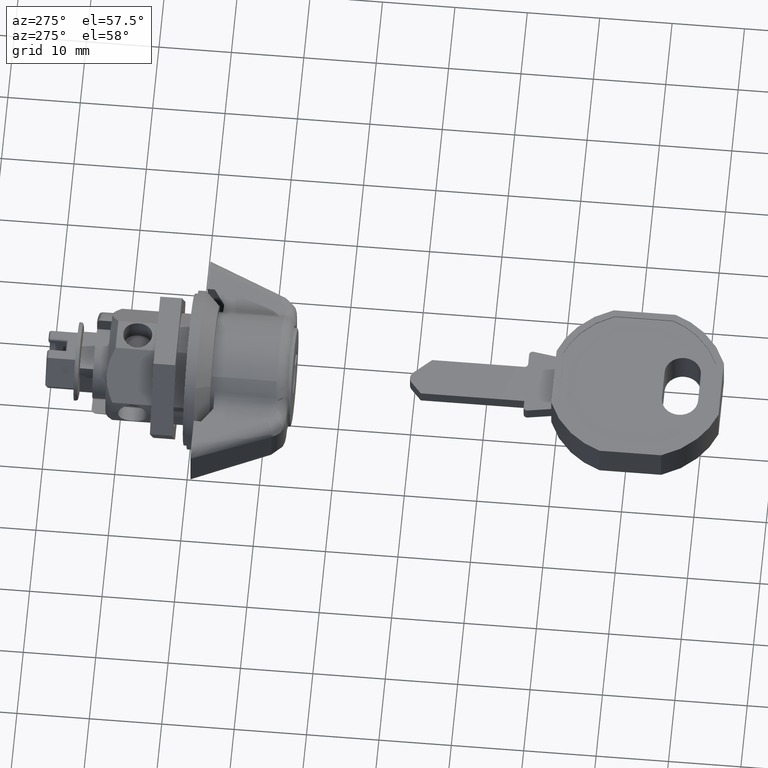
[diagram: clean part render]
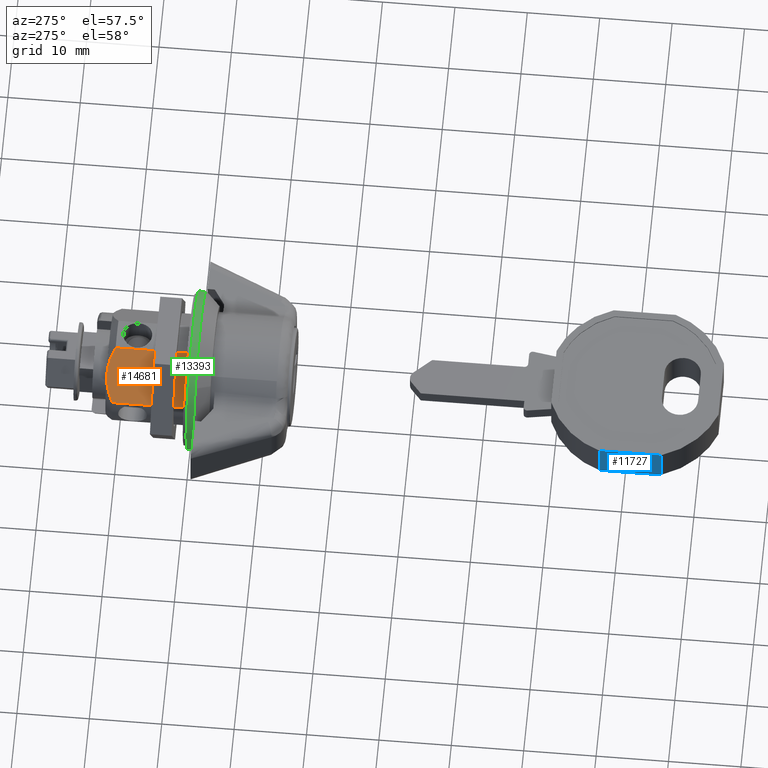
[diagram: same view with three faces highlighted in distinct colors, each labeled with its STEP entity id]
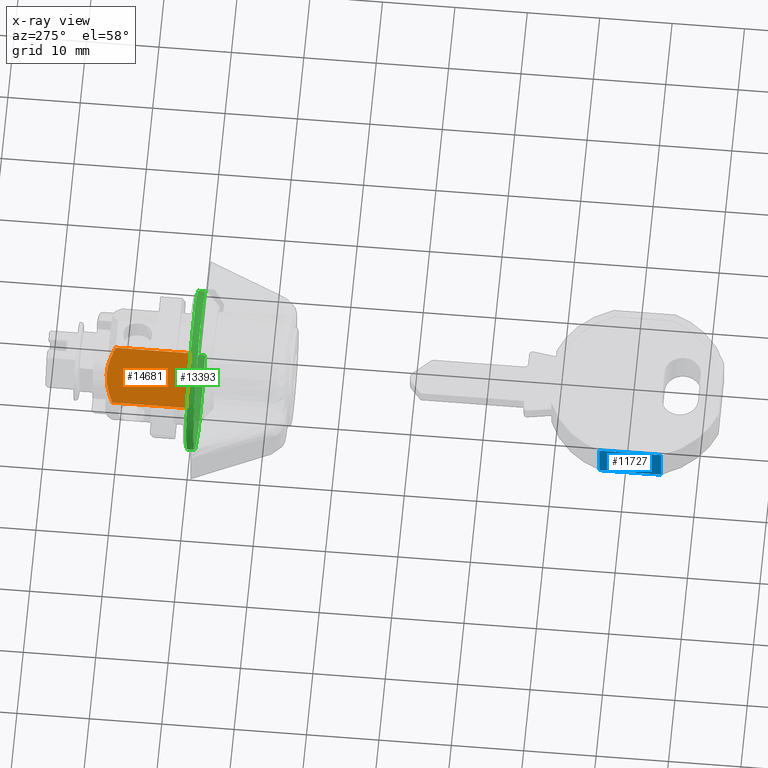
[diagram: x-ray of the same camera — body ghosted, the three highlighted faces saturated]
A machine part, auxiliary view with three faces highlighted in distinct colors.
The next image is the same camera in x-ray (body ghosted, the three faces saturated) — at least one of them is partly hidden behind the body in this view.
Their STEP definitions:

[orange] entity #14681 — the highlighted face is a freeform B-spline surface patch.
#14183=CARTESIAN_POINT('',(10.500000546220701,2.211134680780330,7.688360255831570));
#14184=VERTEX_POINT('',#14183);
#14185=CARTESIAN_POINT('',(11.500000546220701,4.949747703406260,4.949747703406320));
#14186=VERTEX_POINT('',#14185);
#14187=CARTESIAN_POINT('',(10.500000546220701,2.211134680780330,7.688360255831570));
#14188=CARTESIAN_POINT('',(10.647434205165750,2.426475322752959,7.473019613858943));
#14189=CARTESIAN_POINT('',(10.783239749082989,2.644195419303963,7.255299987508595));
#14190=CARTESIAN_POINT('',(11.025567573936700,3.085626767632067,6.813868639180491));
#14191=CARTESIAN_POINT('',(11.132082438281151,3.309339772012540,6.590155634800021));
#14192=CARTESIAN_POINT('',(11.308666914451560,3.764222815251371,6.135272591561195));
#14193=CARTESIAN_POINT('',(11.378712038647510,3.995397864504461,5.904097542308108));
#14194=CARTESIAN_POINT('',(11.450554180674700,4.348958690886744,5.550536715925827));
#14195=CARTESIAN_POINT('',(11.468960888006560,4.467945972499679,5.431549434312892));
#14196=CARTESIAN_POINT('',(11.493734370995339,4.708384016684168,5.191111390128409));
#14197=CARTESIAN_POINT('',(11.500000214283849,4.829065599308533,5.070429807504047));
#14198=CARTESIAN_POINT('',(11.500000546220701,4.949747703406260,4.949747703406320));
#14199=B_SPLINE_CURVE_WITH_KNOTS('',3,(#14187,#14188,#14189,#14190,#14191,#14192,#14193,#14194,#14195,#14196,#14197,#14198),.UNSPECIFIED.,.F.,.U.,(4,2,2,2,2,4),(0.0,0.250000000000000,0.500000000000000,0.750000000000000,0.875000000000000,1.0),.UNSPECIFIED.);
#14200=EDGE_CURVE('',#14184,#14186,#14199,.T.);
#14398=CARTESIAN_POINT('',(10.500000546220701,7.688360621009000,2.211134785803610));
#14399=VERTEX_POINT('',#14398);
#14409=CARTESIAN_POINT('',(11.500000546220701,4.949747703406260,4.949747703406320));
#14410=CARTESIAN_POINT('',(11.500000546220701,5.189489980721086,4.710004955890588));
#14411=CARTESIAN_POINT('',(11.475277226182801,5.426195538069313,4.473299868743269));
#14412=CARTESIAN_POINT('',(11.381261048129719,5.894130940473322,4.005364466339266));
#14413=CARTESIAN_POINT('',(11.312011154155471,6.125366298640853,3.774129108171735));
#14414=CARTESIAN_POINT('',(11.179469161853460,6.468697657167436,3.430797749645156));
#14415=CARTESIAN_POINT('',(11.130517192769490,6.582555301976869,3.316940104835724));
#14416=CARTESIAN_POINT('',(11.023886680101111,6.809198556520022,3.090296850292571));
#14417=CARTESIAN_POINT('',(10.966419872801270,6.921528789217041,2.977966617595556));
#14418=CARTESIAN_POINT('',(10.783434322437181,7.255113444617999,2.644381962194602));
#14419=CARTESIAN_POINT('',(10.647212501088580,7.473343232167331,2.426152174645277));
#14420=CARTESIAN_POINT('',(10.500000546220701,7.688360621009000,2.211134785803610));
#14421=B_SPLINE_CURVE_WITH_KNOTS('',3,(#14409,#14410,#14411,#14412,#14413,#14414,#14415,#14416,#14417,#14418,#14419,#14420),.UNSPECIFIED.,.F.,.U.,(4,2,2,2,2,4),(0.0,0.250000000000000,0.500000000000000,0.625000000000000,0.750000000000000,1.0),.UNSPECIFIED.);
#14422=EDGE_CURVE('',#14186,#14399,#14421,.T.);
#14618=CARTESIAN_POINT('',(0.500000023748948,7.688360621009000,2.211134785803610));
#14619=VERTEX_POINT('',#14618);
#14620=CARTESIAN_POINT('',(10.500000546220701,7.688360621009000,2.211134785803610));
#14621=CARTESIAN_POINT('',(0.500000023748948,7.688360621009000,2.211134785803610));
#14622=QUASI_UNIFORM_CURVE('',1,(#14620,#14621),.UNSPECIFIED.,.F.,.U.);
#14623=EDGE_CURVE('',#14399,#14619,#14622,.T.);
#14645=CARTESIAN_POINT('',(-0.574425004994490,7.961948137196782,1.937547269615823));
#14646=CARTESIAN_POINT('',(-0.574425004994490,1.937547350722654,7.961948056089893));
#14647=CARTESIAN_POINT('',(12.074425859669240,7.961948137196782,1.937547269615823));
#14648=CARTESIAN_POINT('',(12.074425859669240,1.937547350722654,7.961948056089893));
#14649=B_SPLINE_SURFACE_WITH_KNOTS('',1,1,((#14645,#14647),(#14646,#14648)),.UNSPECIFIED.,.F.,.F.,.U.,(2,2),(2,2),(0.0,8.519789297402811),(0.0,12.648850864663730),.UNSPECIFIED.);
#14650=ORIENTED_EDGE('',*,*,#14200,.T.);
#14651=ORIENTED_EDGE('',*,*,#14422,.T.);
#14652=ORIENTED_EDGE('',*,*,#14623,.T.);
#14653=CARTESIAN_POINT('',(0.0,7.688360621009000,2.211134785803610));
#14654=VERTEX_POINT('',#14653);
#14655=CARTESIAN_POINT('',(0.500000023748948,7.688360621009000,2.211134785803610));
#14656=CARTESIAN_POINT('',(0.0,7.688360621009000,2.211134785803610));
#14657=QUASI_UNIFORM_CURVE('',1,(#14655,#14656),.UNSPECIFIED.,.F.,.U.);
#14658=EDGE_CURVE('',#14619,#14654,#14657,.T.);
#14659=ORIENTED_EDGE('',*,*,#14658,.T.);
#14660=CARTESIAN_POINT('',(0.0,2.211134680780330,7.688360255831570));
#14661=VERTEX_POINT('',#14660);
#14662=CARTESIAN_POINT('',(0.0,2.211134680780330,7.688360255831570));
#14663=CARTESIAN_POINT('',(0.0,7.688360621009000,2.211134785803610));
#14664=QUASI_UNIFORM_CURVE('',1,(#14662,#14663),.UNSPECIFIED.,.F.,.U.);
#14665=EDGE_CURVE('',#14661,#14654,#14664,.T.);
#14666=ORIENTED_EDGE('',*,*,#14665,.F.);
#14667=CARTESIAN_POINT('',(0.500000023748948,2.211134680780330,7.688360255831570));
#14668=VERTEX_POINT('',#14667);
#14669=CARTESIAN_POINT('',(0.500000023748948,2.211134680780330,7.688360255831570));
#14670=CARTESIAN_POINT('',(0.0,2.211134680780330,7.688360255831570));
#14671=QUASI_UNIFORM_CURVE('',1,(#14669,#14670),.UNSPECIFIED.,.F.,.U.);
#14672=EDGE_CURVE('',#14668,#14661,#14671,.T.);
#14673=ORIENTED_EDGE('',*,*,#14672,.F.);
#14674=CARTESIAN_POINT('',(10.500000546220701,2.211134680780330,7.688360255831570));
#14675=CARTESIAN_POINT('',(0.500000023748948,2.211134680780330,7.688360255831570));
#14676=QUASI_UNIFORM_CURVE('',1,(#14674,#14675),.UNSPECIFIED.,.F.,.U.);
#14677=EDGE_CURVE('',#14184,#14668,#14676,.T.);
#14678=ORIENTED_EDGE('',*,*,#14677,.F.);
#14679=EDGE_LOOP('',(#14650,#14651,#14652,#14659,#14666,#14673,#14678));
#14680=FACE_OUTER_BOUND('',#14679,.T.);
#14681=ADVANCED_FACE('',(#14680),#14649,.T.);

[blue] entity #11727 — the highlighted face is a freeform B-spline surface patch.
#11343=CARTESIAN_POINT('',(-65.476462251274995,9.849999973391050,-2.499999999999945));
#11344=VERTEX_POINT('',#11343);
#11345=CARTESIAN_POINT('',(-65.376788071871616,9.850000026300819,-2.499999999999945));
#11346=VERTEX_POINT('',#11345);
#11347=CARTESIAN_POINT('',(-65.476462251274995,9.849999973391050,-2.499999999999945));
#11348=CARTESIAN_POINT('',(-65.376788071871616,9.850000026300819,-2.499999999999945));
#11349=QUASI_UNIFORM_CURVE('',1,(#11347,#11348),.UNSPECIFIED.,.F.,.U.);
#11350=EDGE_CURVE('',#11344,#11346,#11349,.T.);
#11352=CARTESIAN_POINT('',(-56.935490918699408,9.850000079210469,-2.499999999999945));
#11353=VERTEX_POINT('',#11352);
#11354=CARTESIAN_POINT('',(-65.376788071871616,9.850000026300819,-2.499999999999945));
#11355=CARTESIAN_POINT('',(-56.935490918699408,9.850000079210469,-2.499999999999945));
#11356=QUASI_UNIFORM_CURVE('',1,(#11354,#11355),.UNSPECIFIED.,.F.,.U.);
#11357=EDGE_CURVE('',#11346,#11353,#11356,.T.);
#11449=CARTESIAN_POINT('',(-65.476462251274995,9.849999973391050,2.499999999999945));
#11450=VERTEX_POINT('',#11449);
#11451=CARTESIAN_POINT('',(-65.376788071871616,9.850000026300819,2.499999999999945));
#11452=VERTEX_POINT('',#11451);
#11453=CARTESIAN_POINT('',(-65.476462251274995,9.849999973391050,2.499999999999945));
#11454=CARTESIAN_POINT('',(-65.376788071871616,9.850000026300819,2.499999999999945));
#11455=QUASI_UNIFORM_CURVE('',1,(#11453,#11454),.UNSPECIFIED.,.F.,.U.);
#11456=EDGE_CURVE('',#11450,#11452,#11455,.T.);
#11519=CARTESIAN_POINT('',(-56.935490918699408,9.850000079210469,2.499999999999945));
#11520=VERTEX_POINT('',#11519);
#11532=CARTESIAN_POINT('',(-65.376788071871616,9.850000026300819,2.499999999999945));
#11533=CARTESIAN_POINT('',(-56.935490918699408,9.850000079210469,2.499999999999945));
#11534=QUASI_UNIFORM_CURVE('',1,(#11532,#11533),.UNSPECIFIED.,.F.,.U.);
#11535=EDGE_CURVE('',#11452,#11520,#11534,.T.);
#11571=CARTESIAN_POINT('',(-65.476462251274995,9.849999973391050,2.499999999999945));
#11572=CARTESIAN_POINT('',(-65.476462251274995,9.849999973391050,-2.499999999999945));
#11573=QUASI_UNIFORM_CURVE('',1,(#11571,#11572),.UNSPECIFIED.,.F.,.U.);
#11574=EDGE_CURVE('',#11450,#11344,#11573,.T.);
#11698=CARTESIAN_POINT('',(-56.935490918699408,9.850000079210469,2.499999999999945));
#11699=CARTESIAN_POINT('',(-56.935490918699408,9.850000079210469,-2.499999999999945));
#11700=QUASI_UNIFORM_CURVE('',1,(#11698,#11699),.UNSPECIFIED.,.F.,.U.);
#11701=EDGE_CURVE('',#11520,#11353,#11700,.T.);
#11714=CARTESIAN_POINT('',(-56.508868023675987,9.850000081884524,-2.749749990308970));
#11715=CARTESIAN_POINT('',(-65.903084688124991,9.850000023002016,-2.749749990308970));
#11716=CARTESIAN_POINT('',(-56.508868023675987,9.850000081884524,2.749750124419420));
#11717=CARTESIAN_POINT('',(-65.903084688124991,9.850000023002018,2.749750124419420));
#11718=B_SPLINE_SURFACE_WITH_KNOTS('',1,1,((#11714,#11716),(#11715,#11717)),.UNSPECIFIED.,.F.,.F.,.U.,(2,2),(2,2),(0.0,9.394216664449004),(0.0,5.499500114728390),.UNSPECIFIED.);
#11719=ORIENTED_EDGE('',*,*,#11357,.F.);
#11720=ORIENTED_EDGE('',*,*,#11350,.F.);
#11721=ORIENTED_EDGE('',*,*,#11574,.F.);
#11722=ORIENTED_EDGE('',*,*,#11456,.T.);
#11723=ORIENTED_EDGE('',*,*,#11535,.T.);
#11724=ORIENTED_EDGE('',*,*,#11701,.T.);
#11725=EDGE_LOOP('',(#11719,#11720,#11721,#11722,#11723,#11724));
#11726=FACE_OUTER_BOUND('',#11725,.T.);
#11727=ADVANCED_FACE('',(#11726),#11718,.T.);

[green] entity #13393 — the highlighted face is a freeform B-spline surface patch.
#13216=CARTESIAN_POINT('',(0.025000001187435,-8.399112471281631,7.103162759584477));
#13217=CARTESIAN_POINT('',(0.025000001187435,-8.195823004827449,7.343541750009779));
#13218=CARTESIAN_POINT('',(0.025000001187435,-7.979118460123033,7.571900692277353));
#13219=CARTESIAN_POINT('',(0.025000001187435,-0.407217767845680,15.551019152400384));
#13220=CARTESIAN_POINT('',(0.025000001187435,7.571900692277353,7.979118460123033));
#13221=CARTESIAN_POINT('',(0.025000001187435,15.551019152400384,0.407217767845680));
#13222=CARTESIAN_POINT('',(0.025000001187435,7.979118460123033,-7.571900692277353));
#13223=CARTESIAN_POINT('',(0.025000001187435,0.407217767845680,-15.551019152400384));
#13224=CARTESIAN_POINT('',(0.025000001187435,-7.571900692277353,-7.979118460123033));
#13225=CARTESIAN_POINT('',(-1.025625048714515,-8.399112471281631,7.103162759584477));
#13226=CARTESIAN_POINT('',(-1.025625048714515,-8.195823004827449,7.343541750009779));
#13227=CARTESIAN_POINT('',(-1.025625048714515,-7.979118460123033,7.571900692277353));
#13228=CARTESIAN_POINT('',(-1.025625048714515,-0.407217767845680,15.551019152400384));
#13229=CARTESIAN_POINT('',(-1.025625048714515,7.571900692277353,7.979118460123033));
#13230=CARTESIAN_POINT('',(-1.025625048714515,15.551019152400384,0.407217767845680));
#13231=CARTESIAN_POINT('',(-1.025625048714515,7.979118460123033,-7.571900692277353));
#13232=CARTESIAN_POINT('',(-1.025625048714515,0.407217767845680,-15.551019152400384));
#13233=CARTESIAN_POINT('',(-1.025625048714515,-7.571900692277353,-7.979118460123033));
#13241=(BOUNDED_SURFACE()B_SPLINE_SURFACE(2,1,((#13216,#13225),(#13217,#13226),(#13218,#13227),(#13219,#13228),(#13220,#13229),(#13221,#13230),(#13222,#13231),(#13223,#13232),(#13224,#13233)),.UNSPECIFIED.,.F.,.F.,.U.)B_SPLINE_SURFACE_WITH_KNOTS((3,2,2,2,3),(2,2),(0.0,0.729015904403053,18.954413514479349,37.179811124555648,55.405208734631941),(0.0,1.0),.UNSPECIFIED.)GEOMETRIC_REPRESENTATION_ITEM()RATIONAL_B_SPLINE_SURFACE(((0.977505800795127,0.977505800795127),(0.988284271247462,0.988284271247462),(1.0,1.0),(0.707106781186548,0.707106781186548),(1.0,1.0),(0.707106781186548,0.707106781186548),(1.0,1.0),(0.707106781186548,0.707106781186548),(1.0,1.0)))REPRESENTATION_ITEM('')SURFACE());
#13242=CARTESIAN_POINT('',(-1.000000047500504,-8.399112724170363,7.103162953249269));
#13243=VERTEX_POINT('',#13242);
#13244=CARTESIAN_POINT('',(-1.000000047497394,0.0,11.000000522472099));
#13245=VERTEX_POINT('',#13244);
#13246=CARTESIAN_POINT('',(-1.000000047500504,-8.399112724170363,7.103162953249269));
#13247=CARTESIAN_POINT('',(-1.000000047500290,-7.836780517741050,7.768428487203052));
#13248=CARTESIAN_POINT('',(-1.000000047499933,-6.827940859372434,8.707792650409576));
#13249=CARTESIAN_POINT('',(-1.000000047499302,-5.182895495354818,9.746849740411406));
#13250=CARTESIAN_POINT('',(-1.000000047498811,-3.813702817916049,10.354068452674360));
#13251=CARTESIAN_POINT('',(-1.000000047498151,-2.065604069849111,10.859961115099919));
#13252=CARTESIAN_POINT('',(-1.000000047497700,-0.821306320951637,11.000153533182001));
#13253=CARTESIAN_POINT('',(-1.000000047497394,0.0,11.000000522472099));
#13254=B_SPLINE_CURVE_WITH_KNOTS('',3,(#13246,#13247,#13248,#13249,#13250,#13251,#13252,#13253),.UNSPECIFIED.,.F.,.U.,(4,1,1,1,1,4),(0.000000019335522,2.613198568686461,4.106464725707791,5.823692557052628,7.092964548806465,9.556836803140508),.UNSPECIFIED.);
#13255=EDGE_CURVE('',#13243,#13245,#13254,.T.);
#13256=ORIENTED_EDGE('',*,*,#13255,.F.);
#13257=CARTESIAN_POINT('',(-2.129571E-017,-8.399112724035124,7.103162953409182));
#13258=VERTEX_POINT('',#13257);
#13259=CARTESIAN_POINT('',(-2.129571E-017,-8.399112724035124,7.103162953409182));
#13260=CARTESIAN_POINT('',(-1.000000047500504,-8.399112724170363,7.103162953249269));
#13261=QUASI_UNIFORM_CURVE('',1,(#13259,#13260),.UNSPECIFIED.,.F.,.U.);
#13262=EDGE_CURVE('',#13258,#13243,#13261,.T.);
#13263=ORIENTED_EDGE('',*,*,#13262,.F.);
#13264=CARTESIAN_POINT('',(0.0,0.0,11.000000522472099));
#13265=VERTEX_POINT('',#13264);
#13266=CARTESIAN_POINT('',(-2.129571E-017,-8.399112724035124,7.103162953409182));
#13267=CARTESIAN_POINT('',(-2.027712E-017,-7.997376174995998,7.578272311022584));
#13268=CARTESIAN_POINT('',(-1.812441E-017,-7.148340424486846,8.424740608768804));
#13269=CARTESIAN_POINT('',(-1.400657E-017,-5.524245880571021,9.586937558618706));
#13270=CARTESIAN_POINT('',(-9.515439E-018,-3.752926823999794,10.408769798045091));
#13271=CARTESIAN_POINT('',(-4.606373E-018,-1.816771556335833,10.898361877165410));
#13272=CARTESIAN_POINT('',(-1.577545E-018,-0.622190125677557,11.000046344488990));
#13273=CARTESIAN_POINT('',(0.0,0.0,11.000000522472099));
#13274=B_SPLINE_CURVE_WITH_KNOTS('',3,(#13266,#13267,#13268,#13269,#13270,#13271,#13272,#13273),.UNSPECIFIED.,.F.,.U.,(4,1,1,1,1,4),(0.000000019339298,1.866566363545727,3.583823103184919,5.973014831593944,7.690271635667425,9.556836802931043),.UNSPECIFIED.);
#13275=EDGE_CURVE('',#13258,#13265,#13274,.T.);
#13276=ORIENTED_EDGE('',*,*,#13275,.T.);
#13277=CARTESIAN_POINT('',(0.0,11.000000522472030,-0.000001290520835));
#13278=VERTEX_POINT('',#13277);
#13279=CARTESIAN_POINT('',(0.0,0.0,11.000000522472099));
#13280=CARTESIAN_POINT('',(0.0,0.629950403506099,11.000051329808301));
#13281=CARTESIAN_POINT('',(0.0,1.867346851904210,10.893425433313361));
#13282=CARTESIAN_POINT('',(0.0,3.527771187008677,10.461237215835620));
#13283=CARTESIAN_POINT('',(0.0,4.876436862380453,9.887965568415739));
#13284=CARTESIAN_POINT('',(0.0,6.030958969009077,9.229245057674079));
#13285=CARTESIAN_POINT('',(0.0,7.083629073108412,8.453534235354292));
#13286=CARTESIAN_POINT('',(0.0,8.161080903549490,7.427717649588383));
#13287=CARTESIAN_POINT('',(0.0,9.256693736318079,6.050268452941415));
#13288=CARTESIAN_POINT('',(0.0,10.275344825554511,4.158774906700564));
#13289=CARTESIAN_POINT('',(0.0,10.880548619254631,2.047363415629032));
#13290=CARTESIAN_POINT('',(0.0,11.000018991901671,0.607449459022155));
#13291=CARTESIAN_POINT('',(0.0,11.000000522472030,-0.000001290520835));
#13292=B_SPLINE_CURVE_WITH_KNOTS('',3,(#13279,#13280,#13281,#13282,#13283,#13284,#13285,#13286,#13287,#13288,#13289,#13290,#13291),.UNSPECIFIED.,.F.,.U.,(4,1,1,1,1,1,1,1,1,1,4),(0.000000058587034,1.889846334227892,3.712235306792307,5.129641365539980,6.277073309589154,7.694487935633848,9.044347331324223,10.731737380202791,12.959091199185901,15.456423214600539,17.278788248163501),.UNSPECIFIED.);
#13293=EDGE_CURVE('',#13265,#13278,#13292,.T.);
#13294=ORIENTED_EDGE('',*,*,#13293,.T.);
#13295=CARTESIAN_POINT('',(0.0,0.0,-11.000000522472099));
#13296=VERTEX_POINT('',#13295);
#13297=CARTESIAN_POINT('',(0.0,11.000000522472030,-0.000001290520835));
#13298=CARTESIAN_POINT('',(0.0,11.000330754068891,-0.967464397010292));
#13299=CARTESIAN_POINT('',(0.0,10.784840753823829,-2.587176859684579));
#13300=CARTESIAN_POINT('',(0.0,10.090140920240531,-4.473628232988311));
#13301=CARTESIAN_POINT('',(0.0,9.331756599622471,-5.881996932908457));
#13302=CARTESIAN_POINT('',(0.0,8.463079878313515,-7.091658514139692));
#13303=CARTESIAN_POINT('',(0.0,7.360213334169411,-8.221880412428249));
#13304=CARTESIAN_POINT('',(0.0,5.935012496148589,-9.327246688456590));
#13305=CARTESIAN_POINT('',(0.0,4.195972139924263,-10.249973164408029));
#13306=CARTESIAN_POINT('',(0.0,2.092322338818894,-10.866894721828061));
#13307=CARTESIAN_POINT('',(0.0,0.697451275839964,-11.000076126861231));
#13308=CARTESIAN_POINT('',(0.0,0.0,-11.000000522472099));
#13309=B_SPLINE_CURVE_WITH_KNOTS('',3,(#13297,#13298,#13299,#13300,#13301,#13302,#13303,#13304,#13305,#13306,#13307,#13308),.UNSPECIFIED.,.F.,.U.,(4,1,1,1,1,1,1,1,1,4),(0.000000058686865,2.902289534171304,4.859659334064521,6.007091413856051,7.694487287727592,9.314321628986548,10.731736475971880,13.094080764118070,15.186443739823440,17.278786793443501),.UNSPECIFIED.);
#13310=EDGE_CURVE('',#13278,#13296,#13309,.T.);
#13311=ORIENTED_EDGE('',*,*,#13310,.T.);
#13312=CARTESIAN_POINT('',(-2.081668E-017,-7.571900470495287,-7.979118226418326));
#13313=VERTEX_POINT('',#13312);
#13314=CARTESIAN_POINT('',(0.0,0.0,-11.000000522472099));
#13315=CARTESIAN_POINT('',(-2.511282E-018,-0.913458777021260,-11.000229682357650));
#13316=CARTESIAN_POINT('',(-6.457147E-018,-2.348735201737026,-10.820161163505270));
#13317=CARTESIAN_POINT('',(-1.112235E-017,-4.045666284740327,-10.257109908887619));
#13318=CARTESIAN_POINT('',(-1.578240E-017,-5.740719632757166,-9.461489136438827));
#13319=CARTESIAN_POINT('',(-1.882223E-017,-6.846434677177049,-8.668070960098515));
#13320=CARTESIAN_POINT('',(-2.081668E-017,-7.571900470495287,-7.979118226418326));
#13321=B_SPLINE_CURVE_WITH_KNOTS('',3,(#13314,#13315,#13316,#13317,#13318,#13319,#13320),.UNSPECIFIED.,.F.,.U.,(4,1,1,1,4),(3.892437E-009,2.740319748314523,4.306215887045005,5.350146932526372,8.351449711565337),.UNSPECIFIED.);
#13322=EDGE_CURVE('',#13296,#13313,#13321,.T.);
#13323=ORIENTED_EDGE('',*,*,#13322,.T.);
#13324=CARTESIAN_POINT('',(-1.000000047473610,-7.571900470495256,-7.979118226418354));
#13325=VERTEX_POINT('',#13324);
#13326=CARTESIAN_POINT('',(-2.081668E-017,-7.571900470495287,-7.979118226418326));
#13327=CARTESIAN_POINT('',(-1.000000047473610,-7.571900470495256,-7.979118226418354));
#13328=QUASI_UNIFORM_CURVE('',1,(#13326,#13327),.UNSPECIFIED.,.F.,.U.);
#13329=EDGE_CURVE('',#13313,#13325,#13328,.T.);
#13330=ORIENTED_EDGE('',*,*,#13329,.T.);
#13331=CARTESIAN_POINT('',(-1.000000047497394,0.0,-11.000000522472099));
#13332=VERTEX_POINT('',#13331);
#13333=CARTESIAN_POINT('',(-1.000000047497394,0.0,-11.000000522472099));
#13334=CARTESIAN_POINT('',(-1.000000047495071,-0.739453945562112,-11.000098361294620));
#13335=CARTESIAN_POINT('',(-1.000000047490564,-2.174817010163024,-10.854736276410360));
#13336=CARTESIAN_POINT('',(-1.000000047484395,-4.138743201775031,-10.254599965874300));
#13337=CARTESIAN_POINT('',(-1.000000047478661,-5.963502741056772,-9.317281648099545));
#13338=CARTESIAN_POINT('',(-1.000000047475298,-7.035585913526167,-8.488190999620926));
#13339=CARTESIAN_POINT('',(-1.000000047473610,-7.571900470495256,-7.979118226418354));
#13340=B_SPLINE_CURVE_WITH_KNOTS('',3,(#13333,#13334,#13335,#13336,#13337,#13338,#13339),.UNSPECIFIED.,.F.,.U.,(4,1,1,1,4),(3.893140E-009,2.218353846276013,4.306215887045262,6.133095869183700,8.351449711565294),.UNSPECIFIED.);
#13341=EDGE_CURVE('',#13332,#13325,#13340,.T.);
#13342=ORIENTED_EDGE('',*,*,#13341,.F.);
#13343=CARTESIAN_POINT('',(-0.999999886796148,8.110051445562299,-7.431492962453929));
#13344=VERTEX_POINT('',#13343);
#13345=CARTESIAN_POINT('',(-0.999999886796148,8.110051445562299,-7.431492962453929));
#13346=CARTESIAN_POINT('',(-0.999999895061320,7.692936140241605,-7.886758783922229));
#13347=CARTESIAN_POINT('',(-0.999999913463374,6.764246233240390,-8.742932008401432));
#13348=CARTESIAN_POINT('',(-0.999999945609769,5.141925689546127,-9.790186804165902));
#13349=CARTESIAN_POINT('',(-0.999999977882402,3.513234111987188,-10.469318895984721));
#13350=CARTESIAN_POINT('',(-1.000000012204728,1.781102747656390,-10.898468111789080));
#13351=CARTESIAN_POINT('',(-1.000000034321249,0.664955707520483,-11.000064414392970));
#13352=CARTESIAN_POINT('',(-1.000000047497394,0.0,-11.000000522472099));
#13353=B_SPLINE_CURVE_WITH_KNOTS('',3,(#13345,#13346,#13347,#13348,#13349,#13350,#13351,#13352),.UNSPECIFIED.,.F.,.U.,(4,1,1,1,1,4),(0.000000017346283,1.852367859529426,3.775987755266149,5.770838124099525,7.124503580657124,9.119361913900097),.UNSPECIFIED.);
#13354=EDGE_CURVE('',#13344,#13332,#13353,.T.);
#13355=ORIENTED_EDGE('',*,*,#13354,.F.);
#13356=CARTESIAN_POINT('',(-1.000000047497394,11.000000522472030,-0.000001290520835));
#13357=VERTEX_POINT('',#13356);
#13358=CARTESIAN_POINT('',(-1.000000047497394,11.000000522472030,-0.000001290520835));
#13359=CARTESIAN_POINT('',(-1.000000034631805,11.000043677662100,-0.594959500722488));
#13360=CARTESIAN_POINT('',(-1.000000009819801,10.906686542584730,-1.742369466830220));
#13361=CARTESIAN_POINT('',(-0.999999978470813,10.555606625052340,-3.192076504370943));
#13362=CARTESIAN_POINT('',(-0.999999950050717,10.061965055213051,-4.506339703836821));
#13363=CARTESIAN_POINT('',(-0.999999919742757,9.340863126872309,-5.907905254870221));
#13364=CARTESIAN_POINT('',(-0.999999898312905,8.598209753491979,-6.898910426240481));
#13365=CARTESIAN_POINT('',(-0.999999886796148,8.110051445562299,-7.431492962453929));
#13366=B_SPLINE_CURVE_WITH_KNOTS('',3,(#13358,#13359,#13360,#13361,#13362,#13363,#13364,#13365),.UNSPECIFIED.,.F.,.U.,(4,1,1,1,1,4),(5.524642E-009,1.784879390677268,3.442278051871392,4.462199712756978,5.992101675268610,8.159459195452797),.UNSPECIFIED.);
#13367=EDGE_CURVE('',#13357,#13344,#13366,.T.);
#13368=ORIENTED_EDGE('',*,*,#13367,.F.);
#13369=CARTESIAN_POINT('',(-1.000000208752919,7.883160722208430,7.671751943288559));
#13370=VERTEX_POINT('',#13369);
#13371=CARTESIAN_POINT('',(-1.000000208752919,7.883160722208430,7.671751943288559));
#13372=CARTESIAN_POINT('',(-1.000000196432439,8.453809050069934,7.085603520954200));
#13373=CARTESIAN_POINT('',(-1.000000174268971,9.272255021166506,6.031173240812272));
#13374=CARTESIAN_POINT('',(-1.000000139548537,10.130818820998689,4.379344257938507));
#13375=CARTESIAN_POINT('',(-1.000000099543081,10.799244624260369,2.476078940020887));
#13376=CARTESIAN_POINT('',(-1.000000067945826,11.000285493662281,0.972835019402898));
#13377=CARTESIAN_POINT('',(-1.000000047497394,11.000000522472030,-0.000001290520835));
#13378=B_SPLINE_CURVE_WITH_KNOTS('',3,(#13371,#13372,#13373,#13374,#13375,#13376,#13377),.UNSPECIFIED.,.F.,.U.,(4,1,1,1,4),(0.000000013742246,2.454113389123321,3.979646669005851,5.571491590193972,8.489900983306832),.UNSPECIFIED.);
#13379=EDGE_CURVE('',#13370,#13357,#13378,.T.);
#13380=ORIENTED_EDGE('',*,*,#13379,.F.);
#13381=CARTESIAN_POINT('',(-1.000000047497394,0.0,11.000000522472099));
#13382=CARTESIAN_POINT('',(-1.000000065757056,0.892644532796744,11.000239356017310));
#13383=CARTESIAN_POINT('',(-1.000000097590994,2.448882848702564,10.809442598649660));
#13384=CARTESIAN_POINT('',(-1.000000141116577,4.576680632939953,10.071267600761360));
#13385=CARTESIAN_POINT('',(-1.000000177474875,6.354098763358893,9.057995342817575));
#13386=CARTESIAN_POINT('',(-1.000000198958155,7.404331795673929,8.163882075030200));
#13387=CARTESIAN_POINT('',(-1.000000208752919,7.883160722208430,7.671751943288559));
#13388=B_SPLINE_CURVE_WITH_KNOTS('',3,(#13381,#13382,#13383,#13384,#13385,#13386,#13387),.UNSPECIFIED.,.F.,.U.,(4,1,1,1,4),(0.000000015354052,2.677867809832835,4.669088807469193,6.728992319272832,8.788887472414265),.UNSPECIFIED.);
#13389=EDGE_CURVE('',#13245,#13370,#13388,.T.);
#13390=ORIENTED_EDGE('',*,*,#13389,.F.);
#13391=EDGE_LOOP('',(#13256,#13263,#13276,#13294,#13311,#13323,#13330,#13342,#13355,#13368,#13380,#13390));
#13392=FACE_OUTER_BOUND('',#13391,.T.);
#13393=ADVANCED_FACE('',(#13392),#13241,.T.);